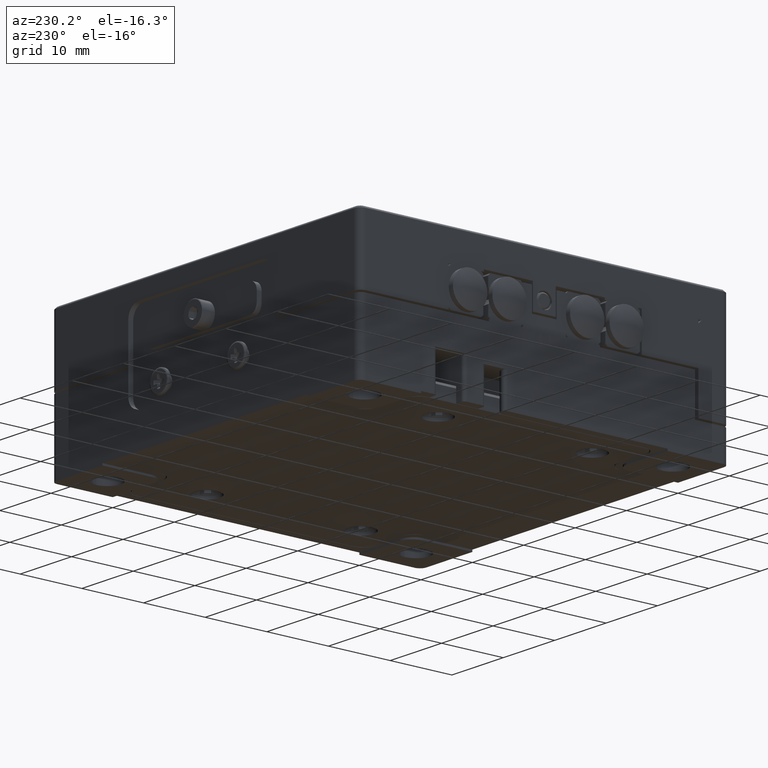
[diagram: clean part render]
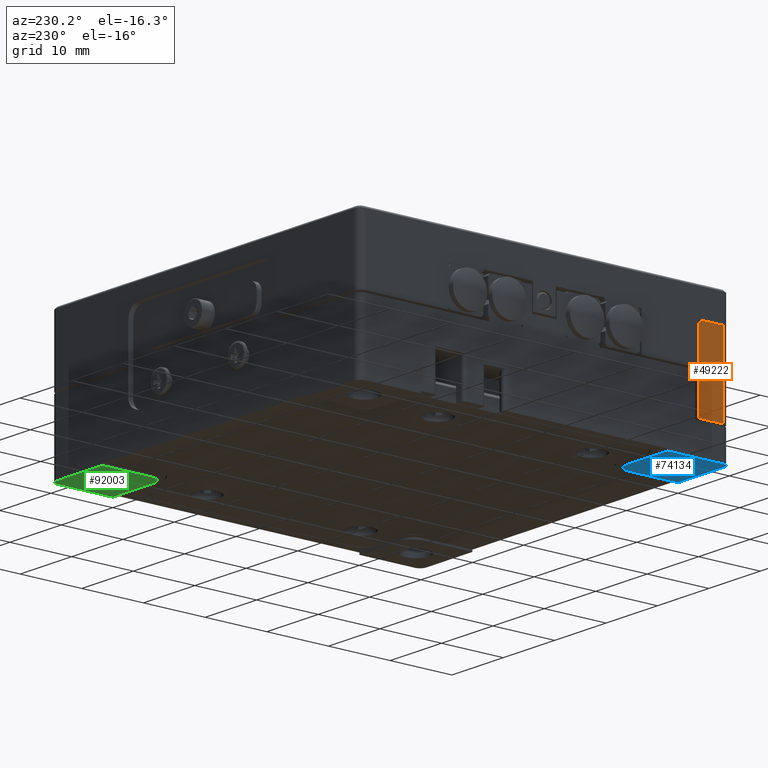
[diagram: same view with three faces highlighted in distinct colors, each labeled with its STEP entity id]
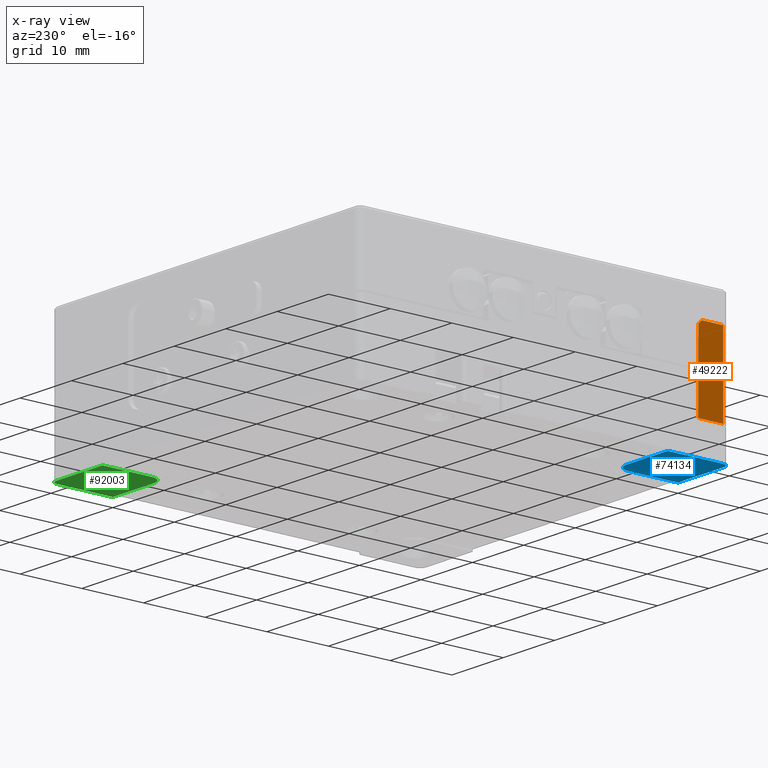
[diagram: x-ray of the same camera — body ghosted, the three highlighted faces saturated]
A machine part, auxiliary view with three faces highlighted in distinct colors.
The next image is the same camera in x-ray (body ghosted, the three faces saturated) — at least one of them is partly hidden behind the body in this view.
Their STEP definitions:

[orange] entity #49222 — the highlighted planar face has unit normal (1, 0, 0).
#5505 = EDGE_CURVE ( 'NONE', #33728, #67151, #12216, .T. ) ;
#7101 = VECTOR ( 'NONE', #35153, 1000.000000000000000 ) ;
#8607 = VERTEX_POINT ( 'NONE', #57261 ) ;
#12216 = LINE ( 'NONE', #78392, #62217 ) ;
#12463 = LINE ( 'NONE', #33572, #33326 ) ;
#12536 = CARTESIAN_POINT ( 'NONE',  ( -30.00000000000000000, -29.00000000000000000, -6.200000000000001066 ) ) ;
#17715 = AXIS2_PLACEMENT_3D ( 'NONE', #51729, #81638, #54641 ) ;
#22095 = EDGE_CURVE ( 'NONE', #67151, #73203, #12463, .T. ) ;
#25304 = VECTOR ( 'NONE', #71122, 1000.000000000000000 ) ;
#26501 = ORIENTED_EDGE ( 'NONE', *, *, #22095, .F. ) ;
#26850 = CARTESIAN_POINT ( 'NONE',  ( -30.00000000000000000, -30.00000000000000000, -6.200000000000001066 ) ) ;
#26888 = DIRECTION ( 'NONE',  ( 0.000000000000000000, -0.7071067811865474617, 0.7071067811865474617 ) ) ;
#27352 = DIRECTION ( 'NONE',  ( 0.000000000000000000, 1.000000000000000000, 0.000000000000000000 ) ) ;
#28777 = CARTESIAN_POINT ( 'NONE',  ( -30.00000000000000355, -29.00000000000000000, -22.88607999999999976 ) ) ;
#33326 = VECTOR ( 'NONE', #42359, 1000.000000000000000 ) ;
#33572 = CARTESIAN_POINT ( 'NONE',  ( -30.00000000000000000, -25.00000000000000000, 6.599999999999999645 ) ) ;
#33728 = VERTEX_POINT ( 'NONE', #45662 ) ;
#34200 = LINE ( 'NONE', #28777, #7101 ) ;
#34222 = LINE ( 'NONE', #26850, #76729 ) ;
#34484 = EDGE_CURVE ( 'NONE', #48484, #8607, #34222, .T. ) ;
#34738 = ORIENTED_EDGE ( 'NONE', *, *, #36651, .F. ) ;
#35153 = DIRECTION ( 'NONE',  ( -0.000000000000000000, -0.000000000000000000, -1.000000000000000000 ) ) ;
#36651 = EDGE_CURVE ( 'NONE', #8607, #33728, #48113, .T. ) ;
#40745 = CARTESIAN_POINT ( 'NONE',  ( -30.00000000000000000, -25.00000000000000000, 0.000000000000000000 ) ) ;
#42359 = DIRECTION ( 'NONE',  ( 0.000000000000000000, -1.000000000000000000, -0.000000000000000000 ) ) ;
#45253 = CARTESIAN_POINT ( 'NONE',  ( -30.00000000000000000, -25.50000000000000355, 6.599999999999998757 ) ) ;
#45662 = CARTESIAN_POINT ( 'NONE',  ( -30.00000000000001066, -25.00000000000000355, 6.099999999999998757 ) ) ;
#48113 = LINE ( 'NONE', #40745, #25304 ) ;
#48484 = VERTEX_POINT ( 'NONE', #12536 ) ;
#49222 = ADVANCED_FACE ( 'NONE', ( #66929 ), #90911, .F. ) ;
#51518 = ORIENTED_EDGE ( 'NONE', *, *, #34484, .F. ) ;
#51729 = CARTESIAN_POINT ( 'NONE',  ( -30.00000000000000000, 0.000000000000000000, 0.000000000000000000 ) ) ;
#54641 = DIRECTION ( 'NONE',  ( 0.000000000000000000, 0.000000000000000000, -1.000000000000000000 ) ) ;
#57261 = CARTESIAN_POINT ( 'NONE',  ( -30.00000000000000000, -25.00000000000000355, -6.200000000000001066 ) ) ;
#59347 = EDGE_CURVE ( 'NONE', #73203, #48484, #34200, .T. ) ;
#59789 = EDGE_LOOP ( 'NONE', ( #51518, #71232, #26501, #68750, #34738 ) ) ;
#60675 = CARTESIAN_POINT ( 'NONE',  ( -30.00000000000000000, -29.00000000000000000, 6.599999999999997868 ) ) ;
#62217 = VECTOR ( 'NONE', #26888, 1000.000000000000114 ) ;
#66929 = FACE_OUTER_BOUND ( 'NONE', #59789, .T. ) ;
#67151 = VERTEX_POINT ( 'NONE', #45253 ) ;
#68750 = ORIENTED_EDGE ( 'NONE', *, *, #5505, .F. ) ;
#71122 = DIRECTION ( 'NONE',  ( -0.000000000000000000, -0.000000000000000000, 1.000000000000000000 ) ) ;
#71232 = ORIENTED_EDGE ( 'NONE', *, *, #59347, .F. ) ;
#73203 = VERTEX_POINT ( 'NONE', #60675 ) ;
#76729 = VECTOR ( 'NONE', #27352, 1000.000000000000000 ) ;
#78392 = CARTESIAN_POINT ( 'NONE',  ( -30.00000000000000000, -25.00000000000000000, 6.099999999999999645 ) ) ;
#81638 = DIRECTION ( 'NONE',  ( 1.000000000000000000, 0.000000000000000000, 0.000000000000000000 ) ) ;
#90911 = PLANE ( 'NONE',  #17715 ) ;

[blue] entity #74134 — the highlighted planar face has unit normal (0, 0, -1).
#1727 = CARTESIAN_POINT ( 'NONE',  ( -30.00000000000000000, 0.000000000000000000, -11.40000000000000036 ) ) ;
#2407 = ORIENTED_EDGE ( 'NONE', *, *, #64278, .T. ) ;
#2799 = ORIENTED_EDGE ( 'NONE', *, *, #42142, .T. ) ;
#3491 = VECTOR ( 'NONE', #46323, 1000.000000000000000 ) ;
#4852 = VECTOR ( 'NONE', #8627, 1000.000000000000000 ) ;
#5381 = EDGE_CURVE ( 'NONE', #23827, #23827, #12196, .T. ) ;
#5408 = LINE ( 'NONE', #94627, #85541 ) ;
#6172 = VERTEX_POINT ( 'NONE', #19103 ) ;
#8114 = EDGE_CURVE ( 'NONE', #50688, #12578, #5408, .T. ) ;
#8627 = DIRECTION ( 'NONE',  ( -0.000000000000000000, 1.000000000000000000, 0.000000000000000000 ) ) ;
#10639 = EDGE_CURVE ( 'NONE', #6172, #12578, #89366, .T. ) ;
#11250 = DIRECTION ( 'NONE',  ( 0.000000000000000000, 0.000000000000000000, -1.000000000000000000 ) ) ;
#12196 = CIRCLE ( 'NONE', #27771, 2.149999999999999023 ) ;
#12578 = VERTEX_POINT ( 'NONE', #90946 ) ;
#14763 = DIRECTION ( 'NONE',  ( 0.000000000000000000, 0.000000000000000000, 1.000000000000000000 ) ) ;
#15502 = CARTESIAN_POINT ( 'NONE',  ( -22.00000000000000000, -20.00000000000000000, -11.40000000000000036 ) ) ;
#17924 = DIRECTION ( 'NONE',  ( -0.000000000000000000, -0.000000000000000000, -1.000000000000000000 ) ) ;
#18153 = CARTESIAN_POINT ( 'NONE',  ( -30.00000000000000000, -30.00000000000000000, -11.40000000000000036 ) ) ;
#18408 = AXIS2_PLACEMENT_3D ( 'NONE', #18153, #11250, #34728 ) ;
#19103 = CARTESIAN_POINT ( 'NONE',  ( -19.99999999999999645, -22.00000000000000000, -11.40000000000000036 ) ) ;
#22524 = CIRCLE ( 'NONE', #69454, 2.000000000000001776 ) ;
#23827 = VERTEX_POINT ( 'NONE', #38559 ) ;
#23873 = ORIENTED_EDGE ( 'NONE', *, *, #28118, .F. ) ;
#26684 = CARTESIAN_POINT ( 'NONE',  ( -29.00000000000000000, -29.00000000000000000, -11.40000000000000036 ) ) ;
#26879 = CARTESIAN_POINT ( 'NONE',  ( -22.00000000000000000, -22.00000000000000000, -11.40000000000000036 ) ) ;
#27229 = ORIENTED_EDGE ( 'NONE', *, *, #55364, .T. ) ;
#27383 = EDGE_LOOP ( 'NONE', ( #2407, #23873, #52078, #64971, #27229, #2799 ) ) ;
#27771 = AXIS2_PLACEMENT_3D ( 'NONE', #36798, #14763, #82871 ) ;
#28118 = EDGE_CURVE ( 'NONE', #6172, #75413, #22524, .T. ) ;
#29526 = VERTEX_POINT ( 'NONE', #35609 ) ;
#29553 = CARTESIAN_POINT ( 'NONE',  ( -20.00000000000000000, -30.00000000000000000, -11.40000000000000036 ) ) ;
#31574 = VERTEX_POINT ( 'NONE', #63515 ) ;
#32811 = FACE_OUTER_BOUND ( 'NONE', #27383, .T. ) ;
#33298 = PLANE ( 'NONE',  #18408 ) ;
#34728 = DIRECTION ( 'NONE',  ( -1.000000000000000000, 0.000000000000000000, -0.000000000000000000 ) ) ;
#35609 = CARTESIAN_POINT ( 'NONE',  ( -30.00000000000000000, -20.00000000000000000, -11.40000000000000036 ) ) ;
#36798 = CARTESIAN_POINT ( 'NONE',  ( -25.00000000000000000, -25.00000000000000000, -11.40000000000000036 ) ) ;
#38559 = CARTESIAN_POINT ( 'NONE',  ( -22.85000000000000142, -25.00000000000000000, -11.40000000000000036 ) ) ;
#42142 = EDGE_CURVE ( 'NONE', #31574, #29526, #53230, .T. ) ;
#44247 = DIRECTION ( 'NONE',  ( -0.000000000000000000, -1.000000000000000000, 0.000000000000000000 ) ) ;
#44868 = LINE ( 'NONE', #75233, #3491 ) ;
#46323 = DIRECTION ( 'NONE',  ( 1.000000000000000000, 0.000000000000000000, 0.000000000000000000 ) ) ;
#47810 = DIRECTION ( 'NONE',  ( 1.000000000000000000, 0.000000000000000000, 0.000000000000000000 ) ) ;
#50688 = VERTEX_POINT ( 'NONE', #85363 ) ;
#52078 = ORIENTED_EDGE ( 'NONE', *, *, #10639, .T. ) ;
#53230 = LINE ( 'NONE', #1727, #4852 ) ;
#55364 = EDGE_CURVE ( 'NONE', #50688, #31574, #67889, .T. ) ;
#55873 = FACE_BOUND ( 'NONE', #85836, .T. ) ;
#56330 = DIRECTION ( 'NONE',  ( -1.000000000000000000, 0.000000000000000000, 0.000000000000000000 ) ) ;
#61142 = ORIENTED_EDGE ( 'NONE', *, *, #5381, .T. ) ;
#61861 = VECTOR ( 'NONE', #44247, 1000.000000000000000 ) ;
#63515 = CARTESIAN_POINT ( 'NONE',  ( -30.00000000000000000, -29.00000000000000000, -11.40000000000000036 ) ) ;
#64278 = EDGE_CURVE ( 'NONE', #29526, #75413, #44868, .T. ) ;
#64971 = ORIENTED_EDGE ( 'NONE', *, *, #8114, .F. ) ;
#67889 = CIRCLE ( 'NONE', #81998, 1.000000000000000888 ) ;
#69454 = AXIS2_PLACEMENT_3D ( 'NONE', #26879, #71031, #56330 ) ;
#71031 = DIRECTION ( 'NONE',  ( -0.000000000000000000, -0.000000000000000000, 1.000000000000000000 ) ) ;
#74134 = ADVANCED_FACE ( 'NONE', ( #55873, #32811 ), #33298, .T. ) ;
#75233 = CARTESIAN_POINT ( 'NONE',  ( -20.00000000000000000, -20.00000000000000000, -11.40000000000000036 ) ) ;
#75413 = VERTEX_POINT ( 'NONE', #15502 ) ;
#78958 = DIRECTION ( 'NONE',  ( 1.000000000000000000, 0.000000000000000000, 0.000000000000000000 ) ) ;
#81998 = AXIS2_PLACEMENT_3D ( 'NONE', #26684, #17924, #47810 ) ;
#82871 = DIRECTION ( 'NONE',  ( 1.000000000000000000, 0.000000000000000000, 0.000000000000000000 ) ) ;
#85363 = CARTESIAN_POINT ( 'NONE',  ( -29.00000000000000000, -30.00000000000000000, -11.40000000000000036 ) ) ;
#85541 = VECTOR ( 'NONE', #78958, 1000.000000000000000 ) ;
#85836 = EDGE_LOOP ( 'NONE', ( #61142 ) ) ;
#89366 = LINE ( 'NONE', #29553, #61861 ) ;
#90946 = CARTESIAN_POINT ( 'NONE',  ( -20.00000000000000000, -30.00000000000000000, -11.40000000000000036 ) ) ;
#94627 = CARTESIAN_POINT ( 'NONE',  ( -30.00000000000000000, -30.00000000000000000, -11.40000000000000036 ) ) ;

[green] entity #92003 — the highlighted planar face has unit normal (0, 0, -1).
#1951 = CARTESIAN_POINT ( 'NONE',  ( 29.00000000000000000, 29.00000000000000000, -11.40000000000000036 ) ) ;
#2150 = VERTEX_POINT ( 'NONE', #40577 ) ;
#2514 = CARTESIAN_POINT ( 'NONE',  ( 20.00000000000000000, 30.00000000000000000, -11.40000000000000036 ) ) ;
#4590 = VECTOR ( 'NONE', #27898, 1000.000000000000000 ) ;
#5102 = CARTESIAN_POINT ( 'NONE',  ( -30.00000000000000000, -30.00000000000000000, -11.40000000000000036 ) ) ;
#7674 = DIRECTION ( 'NONE',  ( -0.000000000000000000, -0.000000000000000000, 1.000000000000000000 ) ) ;
#10851 = CARTESIAN_POINT ( 'NONE',  ( 30.00000000000000000, 0.000000000000000000, -11.40000000000000036 ) ) ;
#11468 = EDGE_LOOP ( 'NONE', ( #16862 ) ) ;
#11492 = AXIS2_PLACEMENT_3D ( 'NONE', #5102, #41903, #71779 ) ;
#15268 = ORIENTED_EDGE ( 'NONE', *, *, #43664, .F. ) ;
#15429 = AXIS2_PLACEMENT_3D ( 'NONE', #1951, #31852, #54904 ) ;
#16862 = ORIENTED_EDGE ( 'NONE', *, *, #57422, .T. ) ;
#18905 = DIRECTION ( 'NONE',  ( -1.000000000000000000, -0.000000000000000000, 0.000000000000000000 ) ) ;
#22701 = VERTEX_POINT ( 'NONE', #50558 ) ;
#23129 = CARTESIAN_POINT ( 'NONE',  ( 30.00000000000000000, 29.00000000000000000, -11.40000000000000036 ) ) ;
#25261 = LINE ( 'NONE', #86060, #28054 ) ;
#26305 = ORIENTED_EDGE ( 'NONE', *, *, #86374, .F. ) ;
#27898 = DIRECTION ( 'NONE',  ( -1.000000000000000000, -0.000000000000000000, -0.000000000000000000 ) ) ;
#27982 = CIRCLE ( 'NONE', #84553, 2.000000000000001776 ) ;
#28054 = VECTOR ( 'NONE', #18905, 1000.000000000000000 ) ;
#31852 = DIRECTION ( 'NONE',  ( 0.000000000000000000, 0.000000000000000000, 1.000000000000000000 ) ) ;
#34653 = VERTEX_POINT ( 'NONE', #36638 ) ;
#36217 = CARTESIAN_POINT ( 'NONE',  ( 20.00000000000000000, 20.00000000000000000, -11.40000000000000036 ) ) ;
#36638 = CARTESIAN_POINT ( 'NONE',  ( 30.00000000000000000, 20.00000000000000000, -11.40000000000000036 ) ) ;
#37090 = CARTESIAN_POINT ( 'NONE',  ( 22.00000000000000000, 22.00000000000000000, -11.40000000000000036 ) ) ;
#39833 = CARTESIAN_POINT ( 'NONE',  ( 27.15000000000000213, 25.00000000000000000, -11.40000000000000036 ) ) ;
#40277 = EDGE_CURVE ( 'NONE', #34653, #94063, #73478, .T. ) ;
#40577 = CARTESIAN_POINT ( 'NONE',  ( 20.00000000000000355, 30.00000000000000000, -11.40000000000000036 ) ) ;
#41903 = DIRECTION ( 'NONE',  ( 0.000000000000000000, 0.000000000000000000, -1.000000000000000000 ) ) ;
#43609 = EDGE_LOOP ( 'NONE', ( #49918, #68683, #58332, #26305, #82535, #15268 ) ) ;
#43627 = DIRECTION ( 'NONE',  ( 0.000000000000000000, 0.000000000000000000, 1.000000000000000000 ) ) ;
#43664 = EDGE_CURVE ( 'NONE', #34653, #69031, #86318, .T. ) ;
#46430 = VECTOR ( 'NONE', #83916, 1000.000000000000000 ) ;
#48290 = PLANE ( 'NONE',  #11492 ) ;
#49918 = ORIENTED_EDGE ( 'NONE', *, *, #40277, .T. ) ;
#50116 = VECTOR ( 'NONE', #85364, 1000.000000000000000 ) ;
#50189 = FACE_BOUND ( 'NONE', #11468, .T. ) ;
#50558 = CARTESIAN_POINT ( 'NONE',  ( 19.99999999999999645, 22.00000000000000000, -11.40000000000000036 ) ) ;
#51855 = VERTEX_POINT ( 'NONE', #86813 ) ;
#54904 = DIRECTION ( 'NONE',  ( 1.000000000000000000, 0.000000000000000000, 0.000000000000000000 ) ) ;
#57141 = AXIS2_PLACEMENT_3D ( 'NONE', #65689, #43627, #88254 ) ;
#57422 = EDGE_CURVE ( 'NONE', #76107, #76107, #82214, .T. ) ;
#57666 = CIRCLE ( 'NONE', #15429, 1.000000000000000888 ) ;
#58211 = CARTESIAN_POINT ( 'NONE',  ( 22.00000000000000000, 20.00000000000000000, -11.40000000000000036 ) ) ;
#58332 = ORIENTED_EDGE ( 'NONE', *, *, #81046, .T. ) ;
#65689 = CARTESIAN_POINT ( 'NONE',  ( 25.00000000000000000, 25.00000000000000000, -11.40000000000000036 ) ) ;
#68683 = ORIENTED_EDGE ( 'NONE', *, *, #85939, .F. ) ;
#69031 = VERTEX_POINT ( 'NONE', #23129 ) ;
#69672 = LINE ( 'NONE', #2514, #46430 ) ;
#71779 = DIRECTION ( 'NONE',  ( -1.000000000000000000, 0.000000000000000000, -0.000000000000000000 ) ) ;
#73478 = LINE ( 'NONE', #36217, #4590 ) ;
#76107 = VERTEX_POINT ( 'NONE', #39833 ) ;
#81046 = EDGE_CURVE ( 'NONE', #22701, #2150, #69672, .T. ) ;
#82214 = CIRCLE ( 'NONE', #57141, 2.149999999999999023 ) ;
#82535 = ORIENTED_EDGE ( 'NONE', *, *, #83830, .F. ) ;
#83830 = EDGE_CURVE ( 'NONE', #69031, #51855, #57666, .T. ) ;
#83916 = DIRECTION ( 'NONE',  ( -0.000000000000000000, 1.000000000000000000, 0.000000000000000000 ) ) ;
#84553 = AXIS2_PLACEMENT_3D ( 'NONE', #37090, #7674, #88591 ) ;
#85364 = DIRECTION ( 'NONE',  ( -0.000000000000000000, 1.000000000000000000, 0.000000000000000000 ) ) ;
#85939 = EDGE_CURVE ( 'NONE', #22701, #94063, #27982, .T. ) ;
#86060 = CARTESIAN_POINT ( 'NONE',  ( -30.00000000000000000, 30.00000000000000000, -11.40000000000000036 ) ) ;
#86318 = LINE ( 'NONE', #10851, #50116 ) ;
#86374 = EDGE_CURVE ( 'NONE', #51855, #2150, #25261, .T. ) ;
#86813 = CARTESIAN_POINT ( 'NONE',  ( 28.99999999999999645, 30.00000000000000000, -11.40000000000000036 ) ) ;
#88254 = DIRECTION ( 'NONE',  ( 1.000000000000000000, 0.000000000000000000, 0.000000000000000000 ) ) ;
#88591 = DIRECTION ( 'NONE',  ( -1.000000000000000000, 0.000000000000000000, 0.000000000000000000 ) ) ;
#92003 = ADVANCED_FACE ( 'NONE', ( #50189, #93393 ), #48290, .T. ) ;
#93393 = FACE_OUTER_BOUND ( 'NONE', #43609, .T. ) ;
#94063 = VERTEX_POINT ( 'NONE', #58211 ) ;